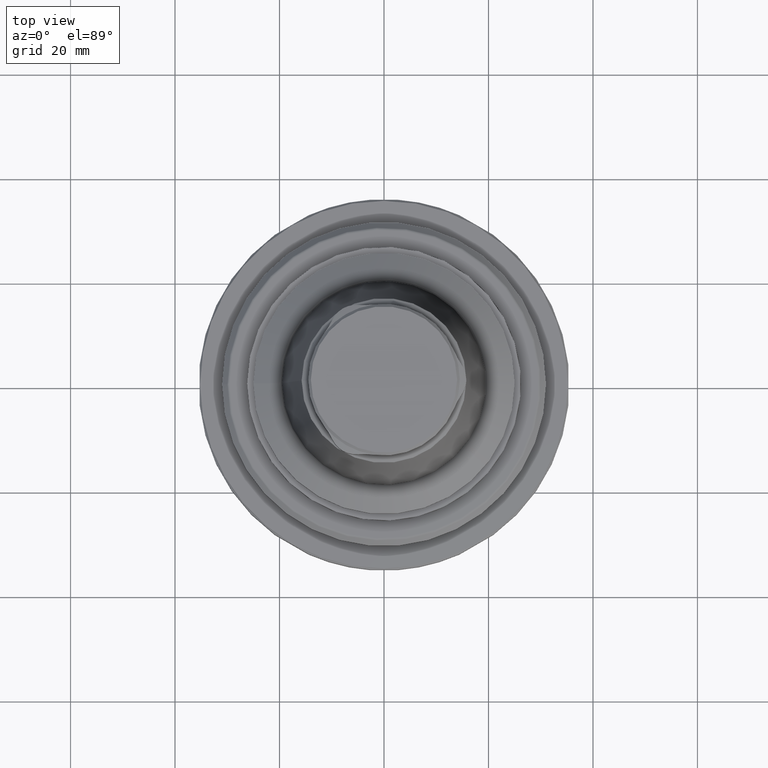
[diagram: clean part render]
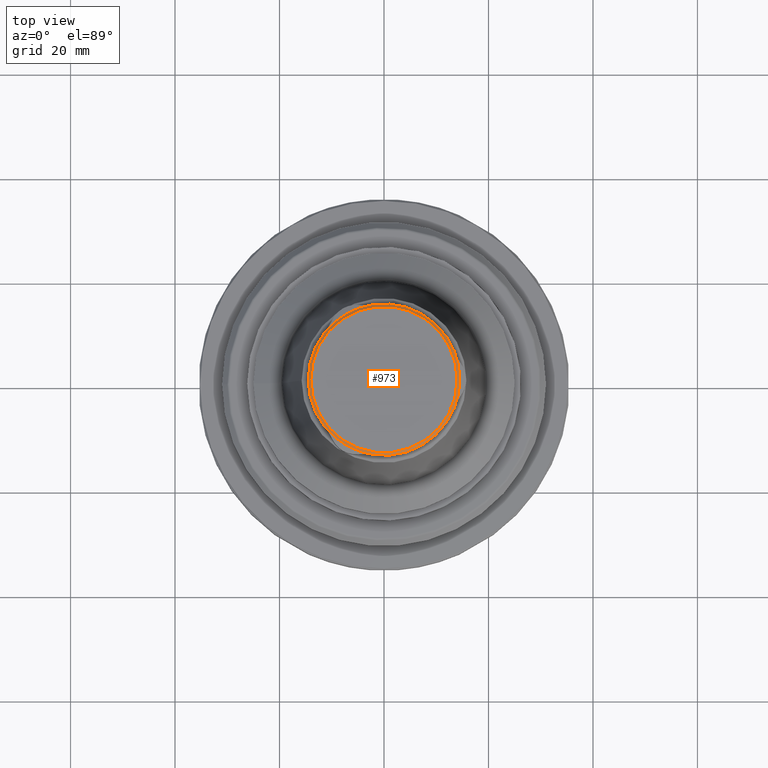
[diagram: same view with one face highlighted and labeled with its STEP entity id]
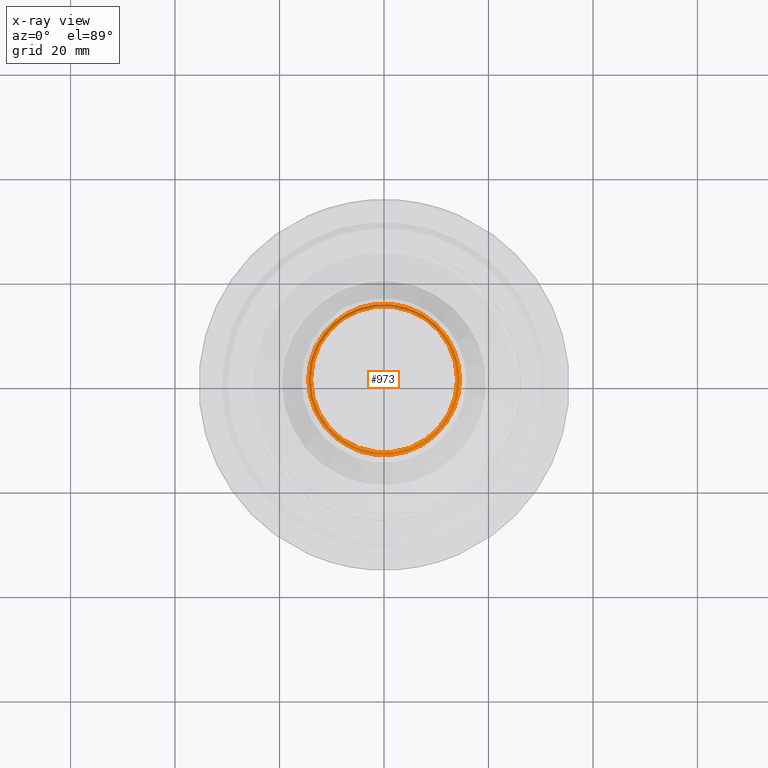
[diagram: x-ray of the same camera — body ghosted, the highlighted face saturated]
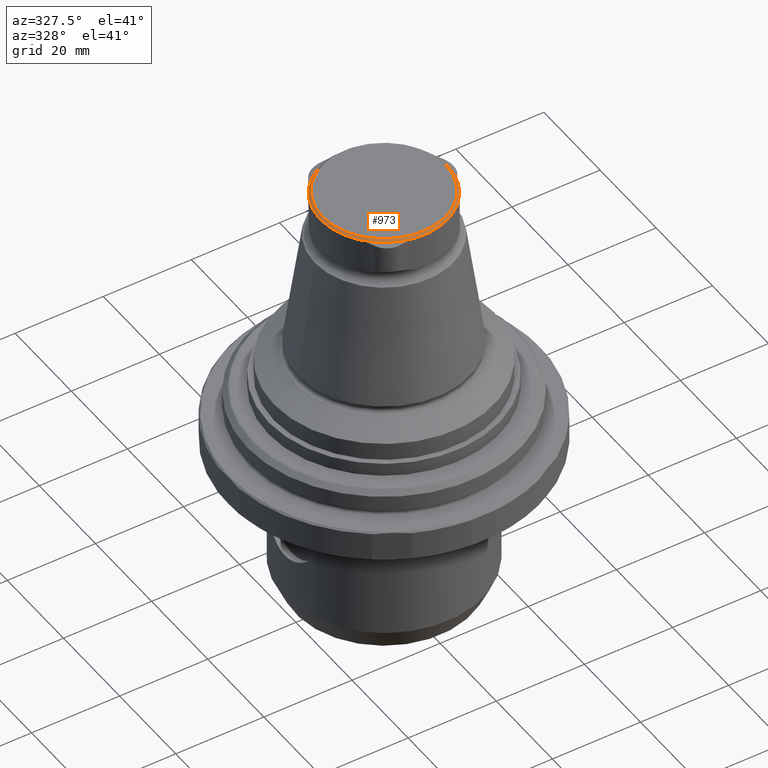
[diagram: same view with one face highlighted and labeled with its STEP entity id]
A machine part, top view. The second image highlights one B-rep face of the part: STEP entity #973.
The next image is the same camera in x-ray: the body ghosted, the highlighted face saturated — about 0% of this face is hidden behind the body in this view.
A second angle (auxiliary view) of the same face is appended — the face is thin or edge-on in the first view.
In plain terms, the highlighted conical surface has half-angle 45 deg.
Its self-contained STEP definition (entity closure, byte-faithful):
#32=CONICAL_SURFACE('',#1092,14.5,0.785398163397452);
#93=CIRCLE('',#1087,14.);
#94=CIRCLE('',#1089,14.5);
#95=CIRCLE('',#1091,14.5);
#96=CIRCLE('',#1093,14.5);
#97=CIRCLE('',#1094,14.5);
#98=CIRCLE('',#1095,14.5);
#99=CIRCLE('',#1096,14.5);
#306=ORIENTED_EDGE('',*,*,#500,.T.);
#307=ORIENTED_EDGE('',*,*,#509,.F.);
#308=ORIENTED_EDGE('',*,*,#510,.F.);
#309=ORIENTED_EDGE('',*,*,#501,.F.);
#310=ORIENTED_EDGE('',*,*,#511,.F.);
#311=ORIENTED_EDGE('',*,*,#505,.F.);
#312=ORIENTED_EDGE('',*,*,#512,.F.);
#500=EDGE_CURVE('',#617,#617,#93,.T.);
#501=EDGE_CURVE('',#618,#619,#94,.T.);
#505=EDGE_CURVE('',#622,#623,#95,.T.);
#509=EDGE_CURVE('',#626,#627,#96,.T.);
#510=EDGE_CURVE('',#619,#626,#97,.T.);
#511=EDGE_CURVE('',#623,#618,#98,.T.);
#512=EDGE_CURVE('',#627,#622,#99,.T.);
#617=VERTEX_POINT('',#1676);
#618=VERTEX_POINT('',#1679);
#619=VERTEX_POINT('',#1680);
#622=VERTEX_POINT('',#1698);
#623=VERTEX_POINT('',#1699);
#626=VERTEX_POINT('',#1717);
#627=VERTEX_POINT('',#1718);
#770=EDGE_LOOP('',(#306));
#771=EDGE_LOOP('',(#307,#308,#309,#310,#311,#312));
#866=FACE_BOUND('',#770,.T.);
#867=FACE_BOUND('',#771,.T.);
#973=ADVANCED_FACE('',(#866,#867),#32,.T.);
#1087=AXIS2_PLACEMENT_3D('',#1675,#1303,#1304);
#1089=AXIS2_PLACEMENT_3D('',#1678,#1307,#1308);
#1091=AXIS2_PLACEMENT_3D('',#1697,#1311,#1312);
#1092=AXIS2_PLACEMENT_3D('',#1715,#1313,#1314);
#1093=AXIS2_PLACEMENT_3D('',#1716,#1315,#1316);
#1094=AXIS2_PLACEMENT_3D('',#1719,#1317,#1318);
#1095=AXIS2_PLACEMENT_3D('',#1720,#1319,#1320);
#1096=AXIS2_PLACEMENT_3D('',#1721,#1321,#1322);
#1303=DIRECTION('',(-4.38328612912168E-16,-8.51929322185263E-24,-1.));
#1304=DIRECTION('',(-1.,9.77164313006873E-16,4.38328610599545E-16));
#1307=DIRECTION('',(-4.38328612912168E-16,-8.51929322185263E-24,-1.));
#1308=DIRECTION('',(-1.,9.77164313006873E-16,4.38328610599545E-16));
#1311=DIRECTION('',(-4.38328612912168E-16,-8.51929322185263E-24,-1.));
#1312=DIRECTION('',(-1.,9.77164313006873E-16,4.38328610599545E-16));
#1313=DIRECTION('',(-4.38328612912168E-16,-8.51929322185263E-24,-1.));
#1314=DIRECTION('',(-1.,9.77164313006873E-16,4.38328610599545E-16));
#1315=DIRECTION('',(-4.38328612912168E-16,-8.51929322185263E-24,-1.));
#1316=DIRECTION('',(-1.,9.77164313006873E-16,4.38328610599545E-16));
#1317=DIRECTION('',(-4.38328612912168E-16,-8.51929322185263E-24,-1.));
#1318=DIRECTION('',(-1.,9.77164313006873E-16,4.38328610599545E-16));
#1319=DIRECTION('',(-4.38328612912168E-16,-8.51929322185263E-24,-1.));
#1320=DIRECTION('',(-1.,9.77164313006873E-16,4.38328610599545E-16));
#1321=DIRECTION('',(-4.38328612912168E-16,-8.51929322185263E-24,-1.));
#1322=DIRECTION('',(-1.,9.77164313006873E-16,4.38328610599545E-16));
#1675=CARTESIAN_POINT('',(-6.36553171097064E-14,-9.81645346997689E-14,55.));
#1676=CARTESIAN_POINT('',(-14.0000000000001,-8.44842343176727E-14,55.));
#1678=CARTESIAN_POINT('',(-6.38744814161624E-14,-9.81645347040286E-14,54.5));
#1679=CARTESIAN_POINT('',(-2.01217892083197,-14.3597052891257,54.5));
#1680=CARTESIAN_POINT('',(-11.4297801108245,-8.92245070696412,54.5));
#1697=CARTESIAN_POINT('',(-6.38744814161624E-14,-9.81645347040286E-14,54.5));
#1698=CARTESIAN_POINT('',(13.4419590316581,5.4372545821627,54.499999999999));
#1699=CARTESIAN_POINT('',(13.4419590316585,-5.43725458216212,54.499999999999));
#1715=CARTESIAN_POINT('',(-6.38744814161624E-14,-9.81645347040286E-14,54.5));
#1716=CARTESIAN_POINT('',(-6.38744814161624E-14,-9.81645347040286E-14,54.5));
#1717=CARTESIAN_POINT('',(-11.4297801108242,8.92245070696371,54.5));
#1718=CARTESIAN_POINT('',(-2.01217892083196,14.3597052891265,54.4999999999997));
#1719=CARTESIAN_POINT('',(-6.38744814161624E-14,-9.81645347040286E-14,54.5));
#1720=CARTESIAN_POINT('',(-6.38744814161624E-14,-9.81645347040286E-14,54.5));
#1721=CARTESIAN_POINT('',(-6.38744814161624E-14,-9.81645347040286E-14,54.5));